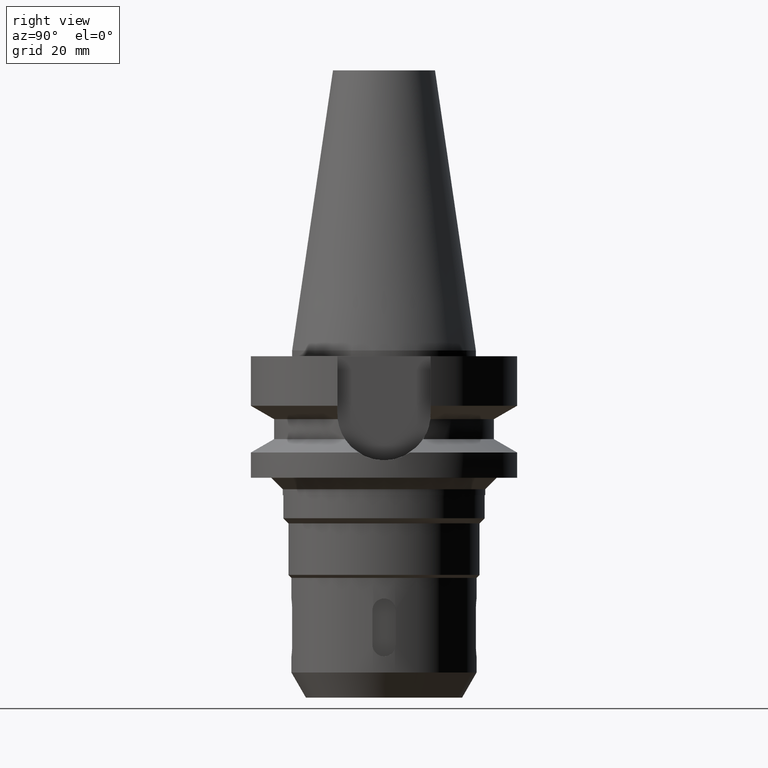
[diagram: clean part render]
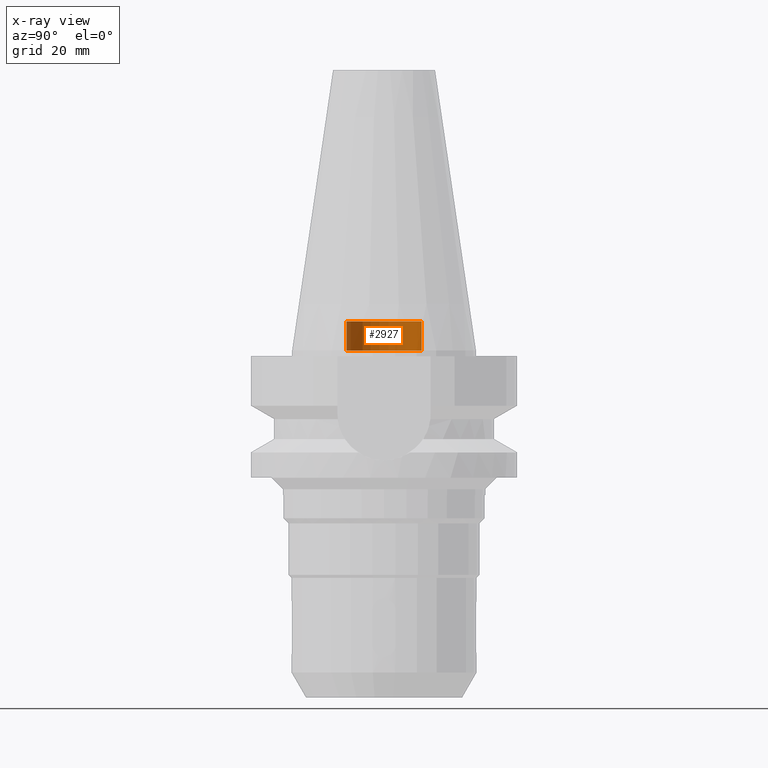
[diagram: x-ray — body ghosted, one internal face saturated and labeled with its STEP entity id]
A machine part, right view, then the same camera in x-ray: the body is ghosted and one INTERNAL B-rep face — a face not visible from any outside direction — is saturated and labeled: STEP entity #2927.
In plain terms, the highlighted cylindrical surface (partial cylindrical patch) has radius 6.5 mm, axis along (0, 0, -1).
Its self-contained STEP definition (entity closure, byte-faithful):
#1238=CARTESIAN_POINT('',(0.E0,1.883751706448E-14,-1.421085471520E-14));
#1239=DIRECTION('',(0.E0,0.E0,-1.E0));
#1240=DIRECTION('',(0.E0,-1.E0,0.E0));
#1241=AXIS2_PLACEMENT_3D('',#1238,#1239,#1240);
#1253=DIRECTION('',(0.E0,0.E0,1.E0));
#1254=VECTOR('',#1253,5.E0);
#1255=CARTESIAN_POINT('',(0.E0,6.5E0,0.E0));
#1256=LINE('',#1255,#1254);
#1268=DIRECTION('',(0.E0,0.E0,1.E0));
#1269=VECTOR('',#1268,5.E0);
#1270=CARTESIAN_POINT('',(0.E0,-6.5E0,0.E0));
#1271=LINE('',#1270,#1269);
#1283=CARTESIAN_POINT('',(0.E0,1.883751706448E-14,5.E0));
#1284=DIRECTION('',(0.E0,0.E0,1.E0));
#1285=DIRECTION('',(0.E0,1.E0,0.E0));
#1286=AXIS2_PLACEMENT_3D('',#1283,#1284,#1285);
#1773=CARTESIAN_POINT('',(0.E0,-6.5E0,5.E0));
#1774=CARTESIAN_POINT('',(0.E0,6.5E0,5.E0));
#1775=VERTEX_POINT('',#1773);
#1776=VERTEX_POINT('',#1774);
#1777=CARTESIAN_POINT('',(0.E0,6.5E0,0.E0));
#1778=VERTEX_POINT('',#1777);
#1779=CARTESIAN_POINT('',(0.E0,-6.5E0,0.E0));
#1780=VERTEX_POINT('',#1779);
#2915=CARTESIAN_POINT('',(0.E0,1.883751706448E-14,5.382E1));
#2916=DIRECTION('',(0.E0,0.E0,-1.E0));
#2917=DIRECTION('',(0.E0,-1.E0,0.E0));
#2918=AXIS2_PLACEMENT_3D('',#2915,#2916,#2917);
#2919=CYLINDRICAL_SURFACE('',#2918,6.5E0);
#2920=ORIENTED_EDGE('',*,*,#2905,.F.);
#2921=ORIENTED_EDGE('',*,*,#2882,.F.);
#2922=ORIENTED_EDGE('',*,*,#2909,.T.);
#2924=ORIENTED_EDGE('',*,*,#2923,.F.);
#2925=EDGE_LOOP('',(#2920,#2921,#2922,#2924));
#2926=FACE_OUTER_BOUND('',#2925,.F.);
#1242=CIRCLE('',#1241,6.5E0);
#1287=CIRCLE('',#1286,6.5E0);
#2882=EDGE_CURVE('',#1780,#1778,#1242,.T.);
#2905=EDGE_CURVE('',#1778,#1776,#1256,.T.);
#2909=EDGE_CURVE('',#1780,#1775,#1271,.T.);
#2923=EDGE_CURVE('',#1776,#1775,#1287,.T.);
#2927=ADVANCED_FACE('',(#2926),#2919,.F.);